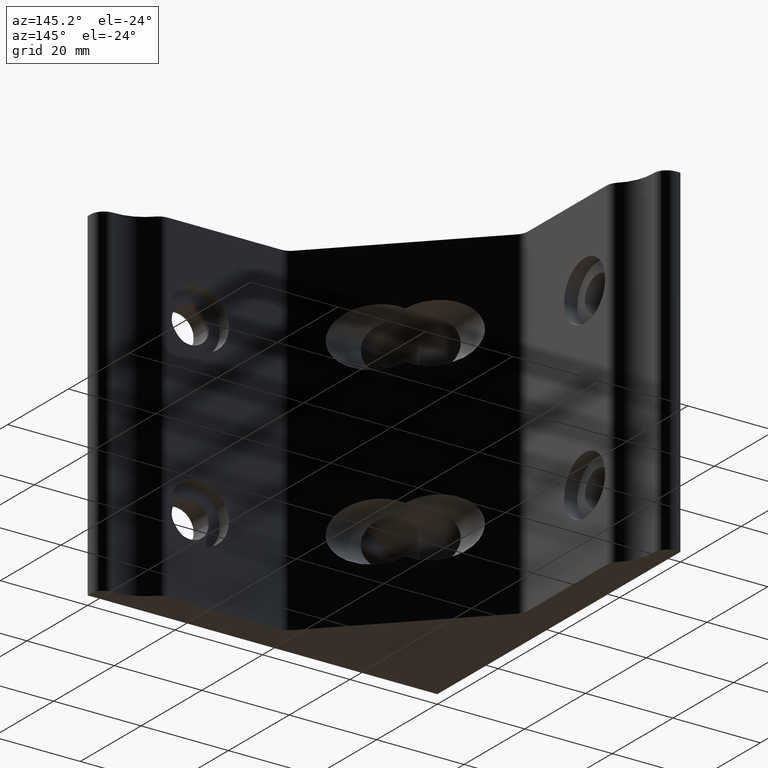
[diagram: clean part render]
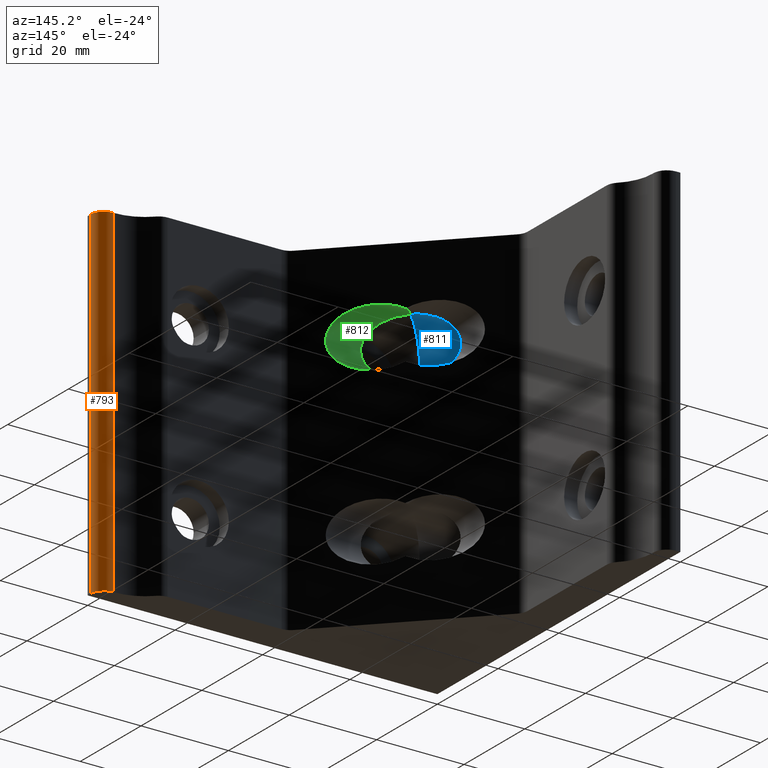
[diagram: same view with three faces highlighted in distinct colors, each labeled with its STEP entity id]
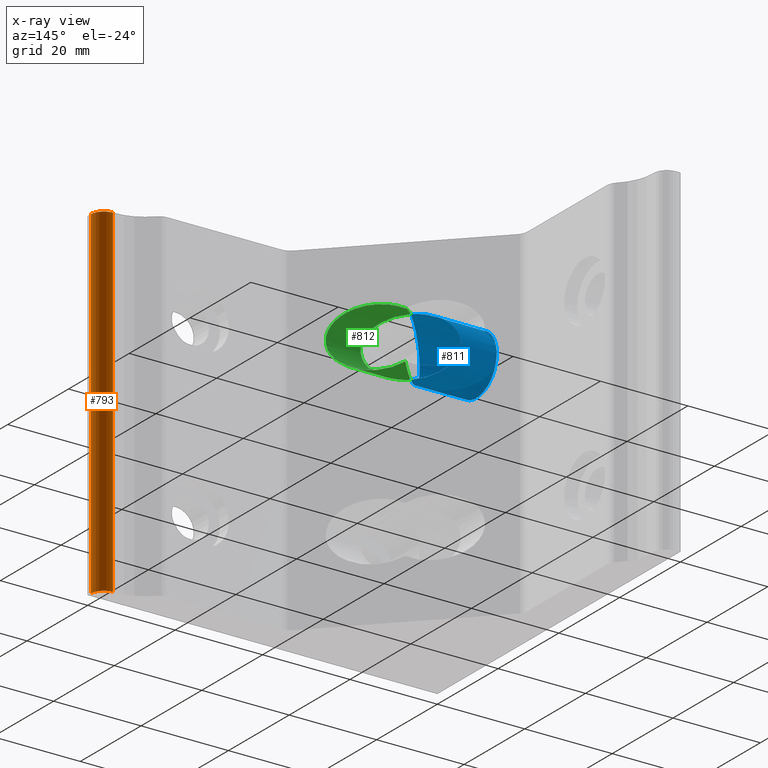
[diagram: x-ray of the same camera — body ghosted, the three highlighted faces saturated]
A machine part, auxiliary view with three faces highlighted in distinct colors.
The next image is the same camera in x-ray (body ghosted, the three faces saturated) — at least one of them is partly hidden behind the body in this view.
Their STEP definitions:

[orange] entity #793 — the highlighted cylindrical surface (edge-blend (fillet) strip) has radius 3 mm, axis along (0, 0, 1).
#81=CIRCLE('',#894,2.99999934797051);
#82=CIRCLE('',#895,2.99999934797051);
#106=CYLINDRICAL_SURFACE('',#893,2.99999934797051);
#143=FACE_OUTER_BOUND('',#204,.T.);
#204=EDGE_LOOP('',(#612,#613,#614,#615));
#243=LINE('',#1231,#294);
#276=LINE('',#1357,#327);
#294=VECTOR('',#960,78.);
#327=VECTOR('',#1083,78.);
#345=VERTEX_POINT('',#1229);
#346=VERTEX_POINT('',#1230);
#393=VERTEX_POINT('',#1354);
#394=VERTEX_POINT('',#1356);
#419=EDGE_CURVE('',#345,#346,#243,.T.);
#482=EDGE_CURVE('',#393,#394,#276,.T.);
#484=EDGE_CURVE('',#394,#346,#81,.T.);
#485=EDGE_CURVE('',#393,#345,#82,.T.);
#612=ORIENTED_EDGE('',*,*,#484,.F.);
#613=ORIENTED_EDGE('',*,*,#482,.F.);
#614=ORIENTED_EDGE('',*,*,#485,.T.);
#615=ORIENTED_EDGE('',*,*,#419,.T.);
#793=ADVANCED_FACE('',(#143),#106,.T.);
#893=AXIS2_PLACEMENT_3D('',#1359,#1085,#1086);
#894=AXIS2_PLACEMENT_3D('',#1360,#1087,#1088);
#895=AXIS2_PLACEMENT_3D('',#1361,#1089,#1090);
#960=DIRECTION('',(0.,0.,1.));
#1083=DIRECTION('',(0.,0.,1.));
#1085=DIRECTION('center_axis',(0.,0.,1.));
#1086=DIRECTION('ref_axis',(1.,0.,0.));
#1087=DIRECTION('center_axis',(0.,0.,1.));
#1088=DIRECTION('ref_axis',(1.,0.,0.));
#1089=DIRECTION('center_axis',(0.,0.,1.));
#1090=DIRECTION('ref_axis',(1.,0.,0.));
#1229=CARTESIAN_POINT('',(76.9967465885436,3.99915588590966,-39.));
#1230=CARTESIAN_POINT('',(76.9967465885436,3.99915588590966,39.));
#1231=CARTESIAN_POINT('',(76.9967465885436,3.99915588590966,-39.));
#1354=CARTESIAN_POINT('',(79.9974926075425,0.999156630858579,-39.));
#1356=CARTESIAN_POINT('',(79.9974926075425,0.999156630858579,39.));
#1357=CARTESIAN_POINT('',(79.9974926075425,0.999156630858579,-39.));
#1359=CARTESIAN_POINT('Origin',(76.997493259572,0.999156630858579,-78.9999738035281));
#1360=CARTESIAN_POINT('Origin',(76.997493259572,0.999156630858579,39.));
#1361=CARTESIAN_POINT('Origin',(76.997493259572,0.999156630858579,-39.));

[blue] entity #811 — the highlighted cylindrical surface (bore or boss wall) has radius 6.75 mm, axis along (-1, 0, 0).
#19=ELLIPSE('',#911,9.54593943031658,6.74999850147299);
#21=ELLIPSE('',#913,9.54593943031658,6.74999850147299);
#23=ELLIPSE('',#916,9.54593943031658,6.74999850147299);
#24=ELLIPSE('',#917,9.54593943031658,6.74999850147299);
#92=CIRCLE('',#936,6.74999850647282);
#118=CYLINDRICAL_SURFACE('',#937,6.74999850647282);
#161=FACE_OUTER_BOUND('',#227,.T.);
#227=EDGE_LOOP('',(#693,#694,#695,#696,#697,#698,#699));
#287=LINE('',#1431,#338);
#338=VECTOR('',#1184,6.74999850647282);
#401=VERTEX_POINT('',#1387);
#402=VERTEX_POINT('',#1389);
#403=VERTEX_POINT('',#1391);
#404=VERTEX_POINT('',#1396);
#412=VERTEX_POINT('',#1428);
#497=EDGE_CURVE('',#402,#401,#19,.T.);
#499=EDGE_CURVE('',#401,#403,#21,.T.);
#501=EDGE_CURVE('',#404,#402,#23,.T.);
#502=EDGE_CURVE('',#403,#404,#24,.T.);
#518=EDGE_CURVE('',#412,#412,#92,.T.);
#519=EDGE_CURVE('',#404,#412,#287,.T.);
#693=ORIENTED_EDGE('',*,*,#497,.T.);
#694=ORIENTED_EDGE('',*,*,#499,.T.);
#695=ORIENTED_EDGE('',*,*,#502,.T.);
#696=ORIENTED_EDGE('',*,*,#519,.T.);
#697=ORIENTED_EDGE('',*,*,#518,.T.);
#698=ORIENTED_EDGE('',*,*,#519,.F.);
#699=ORIENTED_EDGE('',*,*,#501,.T.);
#811=ADVANCED_FACE('',(#161),#118,.F.);
#911=AXIS2_PLACEMENT_3D('',#1390,#1126,#1127);
#913=AXIS2_PLACEMENT_3D('',#1393,#1130,#1131);
#916=AXIS2_PLACEMENT_3D('',#1397,#1136,#1137);
#917=AXIS2_PLACEMENT_3D('',#1398,#1138,#1139);
#936=AXIS2_PLACEMENT_3D('',#1429,#1180,#1181);
#937=AXIS2_PLACEMENT_3D('',#1430,#1182,#1183);
#1126=DIRECTION('center_axis',(0.70710678144843,-0.707106780924665,0.));
#1127=DIRECTION('ref_axis',(0.707106780924665,0.70710678144843,0.));
#1130=DIRECTION('center_axis',(0.70710678144843,-0.707106780924665,0.));
#1131=DIRECTION('ref_axis',(0.707106780924665,0.70710678144843,0.));
#1136=DIRECTION('center_axis',(0.70710678144843,0.707106780924665,0.));
#1137=DIRECTION('ref_axis',(0.707106780924665,-0.70710678144843,0.));
#1138=DIRECTION('center_axis',(0.70710678144843,0.707106780924665,0.));
#1139=DIRECTION('ref_axis',(0.707106780924665,-0.70710678144843,0.));
#1180=DIRECTION('center_axis',(-1.,0.,0.));
#1181=DIRECTION('ref_axis',(0.,-1.,0.));
#1182=DIRECTION('center_axis',(-1.,0.,0.));
#1183=DIRECTION('ref_axis',(0.,-1.,0.));
#1184=DIRECTION('',(-1.,0.,0.));
#1387=CARTESIAN_POINT('',(13.249997058447,13.2499970534473,20.0000042180759));
#1389=CARTESIAN_POINT('',(19.99999555992,19.9999955599201,26.7500027195489));
#1390=CARTESIAN_POINT('Origin',(19.99999555992,19.9999955599201,20.0000042180759));
#1391=CARTESIAN_POINT('',(19.99999555992,19.9999955599201,13.2500057166029));
#1393=CARTESIAN_POINT('Origin',(19.99999555992,19.9999955599201,20.0000042180759));
#1396=CARTESIAN_POINT('',(13.249997058447,26.7499940663929,20.0000042180759));
#1397=CARTESIAN_POINT('Origin',(19.99999555992,19.9999955599201,20.0000042180759));
#1398=CARTESIAN_POINT('Origin',(19.99999555992,19.9999955599201,20.0000042180759));
#1428=CARTESIAN_POINT('',(4.9999988899799,26.7499940663929,20.0000042180759));
#1429=CARTESIAN_POINT('Origin',(4.9999988899799,19.9999955599201,20.0000042180759));
#1430=CARTESIAN_POINT('Origin',(4.9999988899799,19.9999955599201,20.0000042180759));
#1431=CARTESIAN_POINT('',(4.9999988899799,26.7499940663929,20.0000042180759));

[green] entity #812 — the highlighted cylindrical surface (edge-blend (fillet) strip) has radius 6.75 mm, axis along (-1, 0, 0).
#15=ELLIPSE('',#861,9.54593943385778,6.74999850647282);
#20=ELLIPSE('',#912,9.54593943031658,6.74999850147299);
#22=ELLIPSE('',#915,9.54593943031658,6.74999850147299);
#25=ELLIPSE('',#918,9.54593943031658,6.74999850147299);
#119=CYLINDRICAL_SURFACE('',#938,6.74999850647282);
#162=FACE_OUTER_BOUND('',#228,.T.);
#228=EDGE_LOOP('',(#700,#701,#702,#703));
#361=VERTEX_POINT('',#1271);
#362=VERTEX_POINT('',#1272);
#402=VERTEX_POINT('',#1389);
#403=VERTEX_POINT('',#1391);
#440=EDGE_CURVE('',#361,#362,#15,.T.);
#498=EDGE_CURVE('',#402,#403,#20,.T.);
#500=EDGE_CURVE('',#362,#402,#22,.T.);
#503=EDGE_CURVE('',#403,#361,#25,.T.);
#700=ORIENTED_EDGE('',*,*,#503,.F.);
#701=ORIENTED_EDGE('',*,*,#498,.F.);
#702=ORIENTED_EDGE('',*,*,#500,.F.);
#703=ORIENTED_EDGE('',*,*,#440,.F.);
#812=ADVANCED_FACE('',(#162),#119,.F.);
#861=AXIS2_PLACEMENT_3D('',#1273,#999,#1000);
#912=AXIS2_PLACEMENT_3D('',#1392,#1128,#1129);
#915=AXIS2_PLACEMENT_3D('',#1395,#1134,#1135);
#918=AXIS2_PLACEMENT_3D('',#1399,#1140,#1141);
#938=AXIS2_PLACEMENT_3D('',#1432,#1185,#1186);
#999=DIRECTION('center_axis',(-0.70710678118612,-0.707106781186975,0.));
#1000=DIRECTION('ref_axis',(0.707106781186975,-0.70710678118612,0.));
#1128=DIRECTION('center_axis',(0.70710678144843,0.707106780924665,0.));
#1129=DIRECTION('ref_axis',(0.707106780924665,-0.70710678144843,0.));
#1134=DIRECTION('center_axis',(0.70710678144843,-0.707106780924665,0.));
#1135=DIRECTION('ref_axis',(0.707106780924665,0.70710678144843,0.));
#1140=DIRECTION('center_axis',(0.70710678144843,-0.707106780924665,0.));
#1141=DIRECTION('ref_axis',(0.707106780924665,0.70710678144843,0.));
#1185=DIRECTION('center_axis',(-1.,0.,0.));
#1186=DIRECTION('ref_axis',(0.,-1.,-1.6671277103998E-11));
#1271=CARTESIAN_POINT('',(24.000018716798,24.000018723202,14.5628823217393));
#1272=CARTESIAN_POINT('',(24.0000187166723,24.0000187232846,25.4371261145939));
#1273=CARTESIAN_POINT('Origin',(28.0000418807858,19.9999955599201,20.0000042180759));
#1389=CARTESIAN_POINT('',(19.99999555992,19.9999955599201,26.7500027195489));
#1391=CARTESIAN_POINT('',(19.99999555992,19.9999955599201,13.2500057166029));
#1392=CARTESIAN_POINT('Origin',(19.99999555992,19.9999955599201,20.0000042180759));
#1395=CARTESIAN_POINT('Origin',(19.99999555992,19.9999955599201,20.0000042180759));
#1399=CARTESIAN_POINT('Origin',(19.99999555992,19.9999955599201,20.0000042180759));
#1432=CARTESIAN_POINT('Origin',(4.9999988899799,19.9999955599201,20.0000042180759));